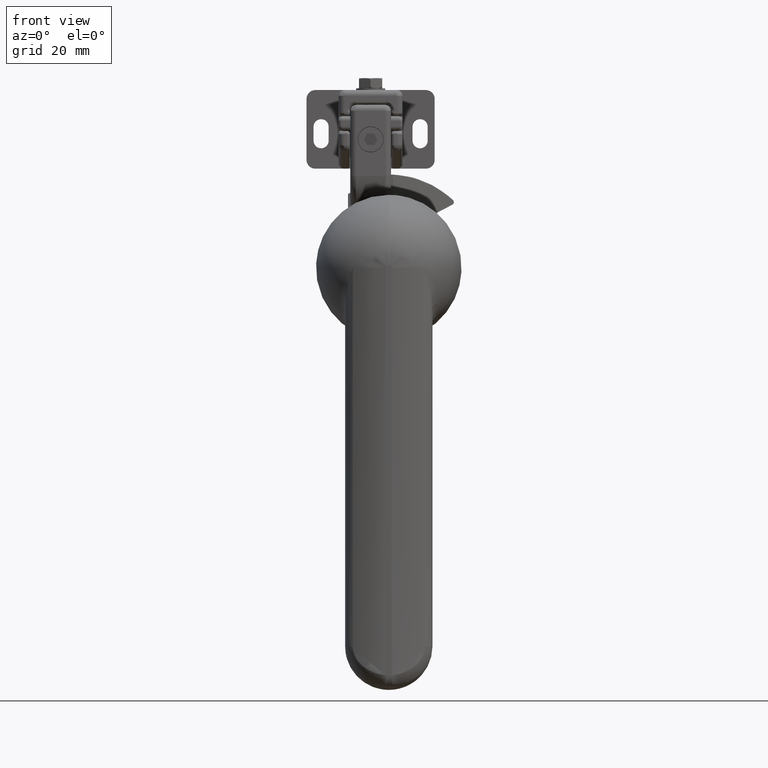
[diagram: clean part render]
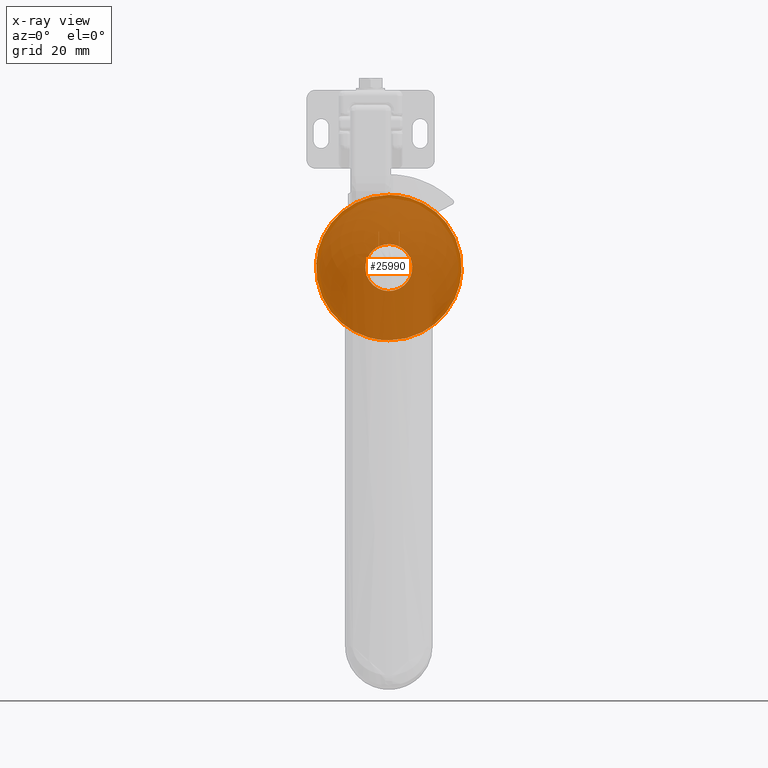
[diagram: x-ray — body ghosted, one internal face saturated and labeled with its STEP entity id]
A machine part, front view, then the same camera in x-ray: the body is ghosted and one INTERNAL B-rep face — a face not visible from any outside direction — is saturated and labeled: STEP entity #25990.
In plain terms, the highlighted face is a freeform B-spline surface patch.
Its self-contained STEP definition (entity closure, byte-faithful):
#23227=CARTESIAN_POINT('',(-24.953370900341600,-43.999999999647798,1.526198119796730));
#23228=VERTEX_POINT('',#23227);
#23234=CARTESIAN_POINT('',(1.384706E-010,-43.999999999647798,24.999999999947601));
#23235=VERTEX_POINT('',#23234);
#23236=CARTESIAN_POINT('',(1.384706E-010,-43.999999999647798,24.999999999947601));
#23237=CARTESIAN_POINT('',(-23.517666183854487,-43.999999999647791,24.999999999947860));
#23238=CARTESIAN_POINT('',(-24.953370900341593,-43.999999999647805,1.526198119796730));
#23246=(BOUNDED_CURVE()B_SPLINE_CURVE(2,(#23236,#23237,#23238),.UNSPECIFIED.,.F.,.U.)B_SPLINE_CURVE_WITH_KNOTS((3,3),(0.500000000000000,0.739333068512104),.UNSPECIFIED.)CURVE()GEOMETRIC_REPRESENTATION_ITEM()RATIONAL_B_SPLINE_CURVE((1.0,0.719603868779957,0.976072269430439))REPRESENTATION_ITEM(''));
#23247=EDGE_CURVE('',#23235,#23228,#23246,.T.);
#23249=CARTESIAN_POINT('',(24.953370900618541,-43.999999999647798,-1.526198119796725));
#23250=VERTEX_POINT('',#23249);
#23251=CARTESIAN_POINT('',(24.953370900618534,-43.999999999647805,-1.526198119796724));
#23252=CARTESIAN_POINT('',(25.000000000094264,-43.999999999647805,-0.763811376631845));
#23253=CARTESIAN_POINT('',(25.000000000094129,-43.999999999647791,-4.921146E-013));
#23254=CARTESIAN_POINT('',(25.000000000089990,-43.999999999647798,24.999999999947363));
#23255=CARTESIAN_POINT('',(1.384706E-010,-43.999999999647798,24.999999999947601));
#23263=(BOUNDED_CURVE()B_SPLINE_CURVE(2,(#23251,#23252,#23253,#23254,#23255),.UNSPECIFIED.,.F.,.U.)B_SPLINE_CURVE_WITH_KNOTS((3,2,3),(0.239333068512105,0.250000000000000,0.500000000000000),.UNSPECIFIED.)CURVE()GEOMETRIC_REPRESENTATION_ITEM()RATIONAL_B_SPLINE_CURVE((0.976072269430439,0.987502912406591,1.0,0.707106781186548,1.0))REPRESENTATION_ITEM(''));
#23264=EDGE_CURVE('',#23250,#23235,#23263,.T.);
#23308=CARTESIAN_POINT('',(1.384706E-010,-43.999999999647798,-24.999999999947601));
#23309=VERTEX_POINT('',#23308);
#23310=CARTESIAN_POINT('',(1.384706E-010,-43.999999999647798,-24.999999999947601));
#23311=CARTESIAN_POINT('',(23.517666184131429,-43.999999999647791,-24.999999999947850));
#23312=CARTESIAN_POINT('',(24.953370900618534,-43.999999999647805,-1.526198119796724));
#23320=(BOUNDED_CURVE()B_SPLINE_CURVE(2,(#23310,#23311,#23312),.UNSPECIFIED.,.F.,.U.)B_SPLINE_CURVE_WITH_KNOTS((3,3),(0.0,0.239333068512105),.UNSPECIFIED.)CURVE()GEOMETRIC_REPRESENTATION_ITEM()RATIONAL_B_SPLINE_CURVE((1.0,0.719603868779957,0.976072269430439))REPRESENTATION_ITEM(''));
#23321=EDGE_CURVE('',#23309,#23250,#23320,.T.);
#23323=CARTESIAN_POINT('',(-24.953370900341593,-43.999999999647805,1.526198119796730));
#23324=CARTESIAN_POINT('',(-24.999999999817327,-43.999999999647805,0.763811376631846));
#23325=CARTESIAN_POINT('',(-24.999999999817199,-43.999999999647798,4.895290E-013));
#23326=CARTESIAN_POINT('',(-24.999999999813056,-43.999999999647798,-24.999999999947363));
#23327=CARTESIAN_POINT('',(1.384706E-010,-43.999999999647798,-24.999999999947601));
#23335=(BOUNDED_CURVE()B_SPLINE_CURVE(2,(#23323,#23324,#23325,#23326,#23327),.UNSPECIFIED.,.F.,.U.)B_SPLINE_CURVE_WITH_KNOTS((3,2,3),(0.739333068512104,0.750000000000000,1.0),.UNSPECIFIED.)CURVE()GEOMETRIC_REPRESENTATION_ITEM()RATIONAL_B_SPLINE_CURVE((0.976072269430439,0.987502912406591,1.0,0.707106781186548,1.0))REPRESENTATION_ITEM(''));
#23336=EDGE_CURVE('',#23228,#23309,#23335,.T.);
#23375=CARTESIAN_POINT('',(7.958069306554123,-43.999999999647763,-1.213108780374738));
#23376=VERTEX_POINT('',#23375);
#23377=CARTESIAN_POINT('',(-7.958069306533957,-43.999999999647741,1.213108779731231));
#23378=VERTEX_POINT('',#23377);
#23379=CARTESIAN_POINT('',(7.958069306554125,-43.999999999647741,-1.213108780374740));
#23380=CARTESIAN_POINT('',(7.911293056147874,-43.999999999647741,-1.519963902334800));
#23381=CARTESIAN_POINT('',(7.841026776371916,-43.999999999647748,-1.822305982438843));
#23382=CARTESIAN_POINT('',(6.393669894810216,-43.999999999647748,-8.050000000387900));
#23383=CARTESIAN_POINT('',(0.0,-43.999999999647748,-8.050000000387900));
#23384=CARTESIAN_POINT('',(-6.393669894811144,-43.999999999647748,-8.050000000387900));
#23385=CARTESIAN_POINT('',(-7.841026776372172,-43.999999999647748,-1.822305982437733));
#23386=CARTESIAN_POINT('',(-8.191138861903930,-43.999999999647741,-0.315842049142618));
#23387=CARTESIAN_POINT('',(-7.958069306533959,-43.999999999647748,1.213108779731231));
#23395=(BOUNDED_CURVE()B_SPLINE_CURVE(2,(#23379,#23380,#23381,#23382,#23383,#23384,#23385,#23386,#23387),.UNSPECIFIED.,.F.,.U.)B_SPLINE_CURVE_WITH_KNOTS((3,2,2,2,3),(0.234706291378735,0.250000000000000,0.500000000000000,0.750000000000000,0.822377690322116),.UNSPECIFIED.)CURVE()GEOMETRIC_REPRESENTATION_ITEM()RATIONAL_B_SPLINE_CURVE((0.975081472684033,0.986728877627444,1.0,0.783062390208885,1.0,0.783062390208885,1.0,0.937194227437275,0.910754348930439))REPRESENTATION_ITEM(''));
#23396=EDGE_CURVE('',#23376,#23378,#23395,.T.);
#23431=CARTESIAN_POINT('',(-3.549999999999500,-43.999999999647748,7.224956746887730));
#23432=VERTEX_POINT('',#23431);
#23433=CARTESIAN_POINT('',(-7.958069306533959,-43.999999999647748,1.213108779731231));
#23434=CARTESIAN_POINT('',(-7.324337847377867,-43.999999999647756,5.370426702366178));
#23435=CARTESIAN_POINT('',(-3.549999999999500,-43.999999999647748,7.224956746887723));
#23443=(BOUNDED_CURVE()B_SPLINE_CURVE(2,(#23433,#23434,#23435),.UNSPECIFIED.,.F.,.U.)B_SPLINE_CURVE_WITH_KNOTS((3,3),(0.822377690322116,1.0),.UNSPECIFIED.)CURVE()GEOMETRIC_REPRESENTATION_ITEM()RATIONAL_B_SPLINE_CURVE((0.910754348930439,0.845868162771610,1.0))REPRESENTATION_ITEM(''));
#23444=EDGE_CURVE('',#23378,#23432,#23443,.T.);
#23450=CARTESIAN_POINT('',(3.550000000000525,-43.999999999647748,7.224956746887220));
#23451=VERTEX_POINT('',#23450);
#23452=CARTESIAN_POINT('',(3.550000000000524,-43.999999999647748,7.224956746887220));
#23453=CARTESIAN_POINT('',(8.847557465214715,-43.999999999647748,4.621989053190516));
#23454=CARTESIAN_POINT('',(7.958069306554125,-43.999999999647741,-1.213108780374740));
#23462=(BOUNDED_CURVE()B_SPLINE_CURVE(2,(#23452,#23453,#23454),.UNSPECIFIED.,.F.,.U.)B_SPLINE_CURVE_WITH_KNOTS((3,3),(0.0,0.234706291378735),.UNSPECIFIED.)CURVE()GEOMETRIC_REPRESENTATION_ITEM()RATIONAL_B_SPLINE_CURVE((1.0,0.796333512581440,0.975081472684033))REPRESENTATION_ITEM(''));
#23463=EDGE_CURVE('',#23451,#23376,#23462,.T.);
#23727=CARTESIAN_POINT('',(-3.499999999999500,-43.999999999647748,12.519984025250061));
#23728=VERTEX_POINT('',#23727);
#23734=CARTESIAN_POINT('',(-3.549999999999500,-43.999999999647748,12.505898607958040));
#23735=VERTEX_POINT('',#23734);
#23736=CARTESIAN_POINT('',(-3.549999999999506,-43.999999999647748,12.505898607958059));
#23737=CARTESIAN_POINT('',(-3.525014070849724,-43.999999999647748,12.512991264892170));
#23738=CARTESIAN_POINT('',(-3.499999999999497,-43.999999999647748,12.519984025250050));
#23746=(BOUNDED_CURVE()B_SPLINE_CURVE(2,(#23736,#23737,#23738),.UNSPECIFIED.,.F.,.U.)CURVE()GEOMETRIC_REPRESENTATION_ITEM()QUASI_UNIFORM_CURVE()RATIONAL_B_SPLINE_CURVE((1.0,0.999998004140774,1.0))REPRESENTATION_ITEM(''));
#23747=EDGE_CURVE('',#23735,#23728,#23746,.T.);
#23866=CARTESIAN_POINT('',(-3.499999999999500,-43.999999999647748,7.249310311635139));
#23867=VERTEX_POINT('',#23866);
#23873=CARTESIAN_POINT('',(-3.499999999999500,-43.999999999647748,7.249310311635139));
#23874=CARTESIAN_POINT('',(-3.499999999999500,-43.999999999647748,12.519984025250061));
#23875=QUASI_UNIFORM_CURVE('',1,(#23873,#23874),.UNSPECIFIED.,.F.,.U.);
#23876=EDGE_CURVE('',#23867,#23728,#23875,.T.);
#23887=CARTESIAN_POINT('',(3.500000000000525,-43.999999999647748,12.519984025250160));
#23888=VERTEX_POINT('',#23887);
#23889=CARTESIAN_POINT('',(3.500000000000525,-43.999999999647748,7.249310311634640));
#23890=VERTEX_POINT('',#23889);
#23891=CARTESIAN_POINT('',(3.500000000000525,-43.999999999647748,12.519984025250160));
#23892=CARTESIAN_POINT('',(3.500000000000525,-43.999999999647748,7.249310311634640));
#23893=QUASI_UNIFORM_CURVE('',1,(#23891,#23892),.UNSPECIFIED.,.F.,.U.);
#23894=EDGE_CURVE('',#23888,#23890,#23893,.T.);
#23932=CARTESIAN_POINT('',(-3.499999999999499,-43.999999999647748,7.249310311635135));
#23933=CARTESIAN_POINT('',(6.327404E-013,-43.999999999647748,8.939126235183339));
#23934=CARTESIAN_POINT('',(3.500000000000526,-43.999999999647748,7.249310311634639));
#23942=(BOUNDED_CURVE()B_SPLINE_CURVE(2,(#23932,#23933,#23934),.UNSPECIFIED.,.F.,.U.)CURVE()GEOMETRIC_REPRESENTATION_ITEM()QUASI_UNIFORM_CURVE()RATIONAL_B_SPLINE_CURVE((1.0,0.900535442487303,1.0))REPRESENTATION_ITEM(''));
#23943=EDGE_CURVE('',#23867,#23890,#23942,.T.);
#24294=CARTESIAN_POINT('',(-3.549999999999500,-43.999999999647748,7.224956746887730));
#24295=CARTESIAN_POINT('',(-3.549999999999500,-43.999999999647748,12.505898607958040));
#24296=QUASI_UNIFORM_CURVE('',1,(#24294,#24295),.UNSPECIFIED.,.F.,.U.);
#24297=EDGE_CURVE('',#23432,#23735,#24296,.T.);
#24320=CARTESIAN_POINT('',(3.550000000000515,-43.999999999647748,12.505898607958160));
#24321=VERTEX_POINT('',#24320);
#24322=CARTESIAN_POINT('',(3.550000000000515,-43.999999999647748,12.505898607958160));
#24323=CARTESIAN_POINT('',(3.550000000000525,-43.999999999647748,7.224956746887220));
#24324=QUASI_UNIFORM_CURVE('',1,(#24322,#24323),.UNSPECIFIED.,.F.,.U.);
#24325=EDGE_CURVE('',#24321,#23451,#24324,.T.);
#25955=CARTESIAN_POINT('',(-27.496884682533569,-43.999999999647798,-27.497499903032661));
#25956=CARTESIAN_POINT('',(-27.496884682533569,-43.999999999647798,27.497501244137169));
#25957=CARTESIAN_POINT('',(27.496883788740821,-43.999999999647798,-27.497499903032661));
#25958=CARTESIAN_POINT('',(27.496883788740821,-43.999999999647798,27.497501244137169));
#25959=B_SPLINE_SURFACE_WITH_KNOTS('',1,1,((#25955,#25957),(#25956,#25958)),.UNSPECIFIED.,.F.,.F.,.U.,(2,2),(2,2),(0.0,54.995001147169830),(0.0,54.993768471274393),.UNSPECIFIED.);
#25960=ORIENTED_EDGE('',*,*,#23321,.T.);
#25961=ORIENTED_EDGE('',*,*,#23264,.T.);
#25962=ORIENTED_EDGE('',*,*,#23247,.T.);
#25963=ORIENTED_EDGE('',*,*,#23336,.T.);
#25964=EDGE_LOOP('',(#25960,#25961,#25962,#25963));
#25965=FACE_OUTER_BOUND('',#25964,.T.);
#25966=CARTESIAN_POINT('',(3.500000000000520,-43.999999999647748,12.519984025250150));
#25967=CARTESIAN_POINT('',(3.525014070850087,-43.999999999647748,12.512991264892454));
#25968=CARTESIAN_POINT('',(3.550000000000511,-43.999999999647748,12.505898607958160));
#25976=(BOUNDED_CURVE()B_SPLINE_CURVE(2,(#25966,#25967,#25968),.UNSPECIFIED.,.F.,.U.)CURVE()GEOMETRIC_REPRESENTATION_ITEM()QUASI_UNIFORM_CURVE()RATIONAL_B_SPLINE_CURVE((1.0,0.999998004140775,1.0))REPRESENTATION_ITEM(''));
#25977=EDGE_CURVE('',#23888,#24321,#25976,.T.);
#25978=ORIENTED_EDGE('',*,*,#25977,.T.);
#25979=ORIENTED_EDGE('',*,*,#24325,.T.);
#25980=ORIENTED_EDGE('',*,*,#23463,.T.);
#25981=ORIENTED_EDGE('',*,*,#23396,.T.);
#25982=ORIENTED_EDGE('',*,*,#23444,.T.);
#25983=ORIENTED_EDGE('',*,*,#24297,.T.);
#25984=ORIENTED_EDGE('',*,*,#23747,.T.);
#25985=ORIENTED_EDGE('',*,*,#23876,.F.);
#25986=ORIENTED_EDGE('',*,*,#23943,.T.);
#25987=ORIENTED_EDGE('',*,*,#23894,.F.);
#25988=EDGE_LOOP('',(#25978,#25979,#25980,#25981,#25982,#25983,#25984,#25985,#25986,#25987));
#25989=FACE_BOUND('',#25988,.T.);
#25990=ADVANCED_FACE('',(#25965,#25989),#25959,.F.);